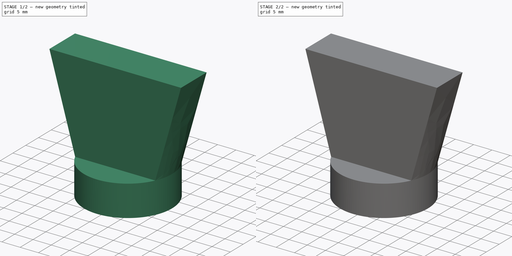
[diagram: build sequence overview — one tinted view per stage of 2, left to right]
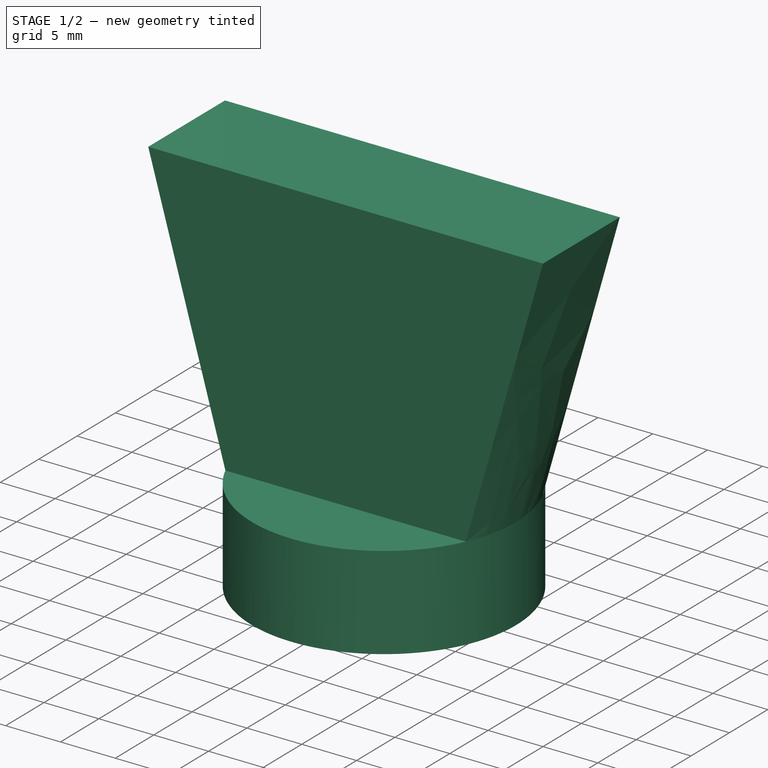
[diagram: stage 1 of 2 — iso view after this stage's code; geometry added in this stage tinted green]
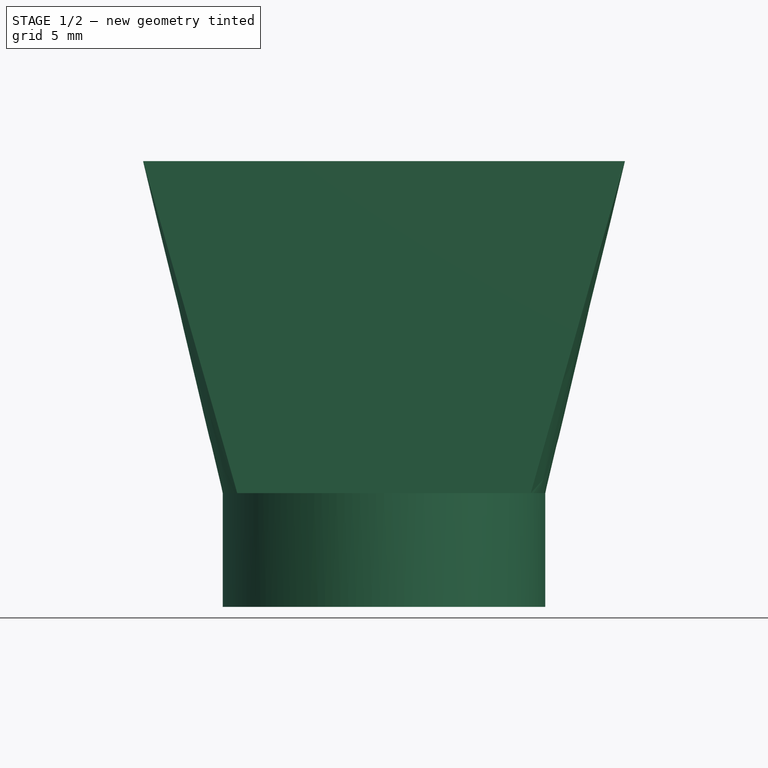
[diagram: stage 1 of 2 — front view after this stage's code; geometry added in this stage tinted green]
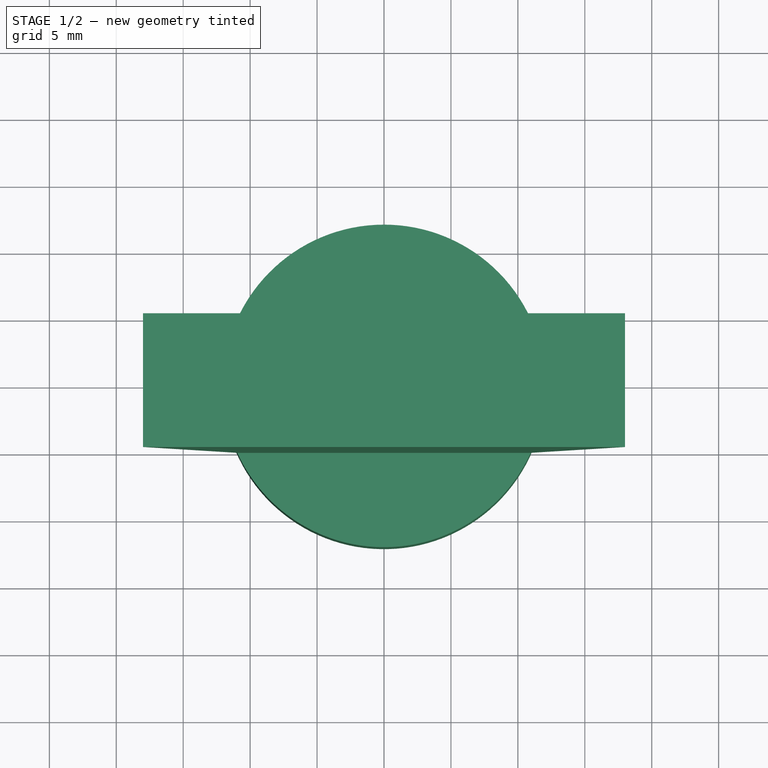
[diagram: stage 1 of 2 — top view after this stage's code; geometry added in this stage tinted green]
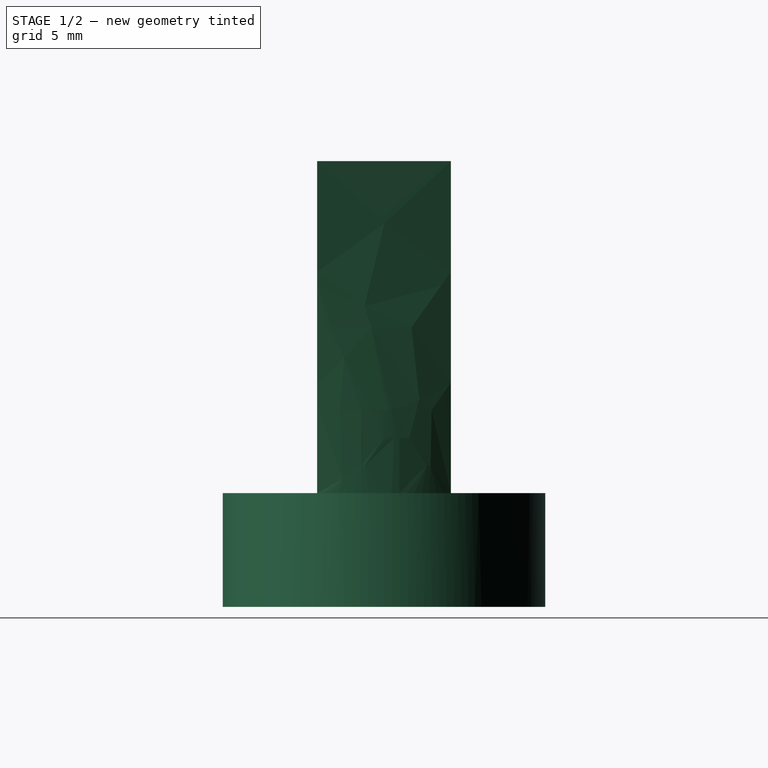
[diagram: stage 1 of 2 — right view after this stage's code; geometry added in this stage tinted green]
FCSTD DOCUMENT  (FreeCAD 1.1R39153 (Git))
Label: Пимпа для батарей
License: All rights reserved
LicenseURL: https://en.wikipedia.org/wiki/All_rights_reserved
objects: Sketcher::SketchObject×5, PartDesign::Pad×1, PartDesign::AdditiveLoft×1, PartDesign::Pocket×1, PartDesign::Body×1
note: 20 computed .brp shape members not serialized (recipe doc carries the construction recipe); baked Part::Feature solids carry a one-line shape summary decoded from their .brp

FEATURE [Sketcher::SketchObject] Sketch
  ArcFitTolerance = 1e-06
  AttachmentSupport = -> [XY_Plane]
  FullyConstrained = true
  MakeInternals = false
  MapMode = 5
  expr: Constraints[1] = 13.1 mm + 5.5 mm * 2
  sketch-geometry (1):
    g0: Circle CenterX=0 CenterY=0 CenterZ=0 NormalX=0 NormalY=0 NormalZ=1 AngleXU=0 Radius=12.05
  constraints (2):
    c: Coincident(g0,g-1)
    c: Diameter(g0) = 24.1
FEATURE [PartDesign::Pad] Pad
  Direction = (0,0,1)
  Length = 8.5
  Length2 = 10
  Profile = -> Sketch
  ReferenceAxis = -> Sketch [N_Axis]
  Refine = true
  Suppressed = false
  Type = 0
  expr: Length = 5.5 mm + 3 mm
FEATURE [Sketcher::SketchObject] Sketch001
  ArcFitTolerance = 1e-06
  AttachmentSupport = -> [XZ_Plane]
  ExternalGeometry = -> [Pad]
  FullyConstrained = false
  MakeInternals = false
  MapMode = 5
  Placement = pos=(0,0,0) rot=(1,0,0;1.5708rad)
  sketch-geometry (5):
    g0: LineSegment StartX=-12.05 StartY=8.5 StartZ=0 EndX=-15 EndY=28.5 EndZ=0
    g1: LineSegment StartX=-15 StartY=28.5 StartZ=0 EndX=15 EndY=28.5 EndZ=0
    g2: LineSegment StartX=15 StartY=28.5 StartZ=0 EndX=12.05 EndY=8.5 EndZ=0
    g3: LineSegment StartX=12.05 StartY=8.5 StartZ=0 EndX=-12.05 EndY=8.5 EndZ=0
    g4: LineSegment [constr] StartX=-15 StartY=28.5 StartZ=0 EndX=-15 EndY=8.57784 EndZ=0
  constraints (12):
    c: Coincident(g-3,g0)
    c: Coincident(g0,g1)
    c: Coincident(g1,g2)
    c: Coincident(g2,g-3)
    c: Coincident(g2,g3)
    c: Coincident(g3,g0)
    c: Symmetric(g0,g1,g-2)
    c: DistanceY(g2,g2) = 20
    c: DistanceX(g1,g1) = 30
    c: Coincident(g4,g0)
    c: Vertical(g4)
    c: Angle(g4,g0) = 0.146444
FEATURE [Sketcher::SketchObject] Sketch002
  ArcFitTolerance = 1e-06
  AttachmentSupport = -> [Pad]
  ExternalGeometry = -> [Pad]
  FullyConstrained = true
  MakeInternals = false
  MapMode = 5
  Placement = pos=(0,0,8.5) rot=(0,0,1;0rad)
  sketch-geometry (4):
    g0: ArcOfCircle CenterX=0 CenterY=0 CenterZ=0 NormalX=0 NormalY=0 NormalZ=1 AngleXU=0 Radius=12.05 StartAngle=2.71372 EndAngle=3.56947
    g1: ArcOfCircle CenterX=0 CenterY=0 CenterZ=0 NormalX=0 NormalY=0 NormalZ=1 AngleXU=0 Radius=12.05 StartAngle=5.85531 EndAngle=6.71106
    g2: LineSegment StartX=-10.9637 StartY=5 StartZ=0 EndX=10.9637 EndY=5 EndZ=0
    g3: LineSegment StartX=10.9637 StartY=-5 StartZ=0 EndX=-10.9637 EndY=-5 EndZ=0
  constraints (11):
    c: Coincident(g0,g-1)
    c: PointOnObject(g0,g-3)
    c: Coincident(g1,g0)
    c: Coincident(g2,g0)
    c: Coincident(g2,g1)
    c: Coincident(g3,g1)
    c: Coincident(g3,g0)
    c: Horizontal(g3)
    c: Symmetric(g0,g1,g0)
    c: Horizontal(g2)
    c: Distance(g3,g2) = 10
FEATURE [Sketcher::SketchObject] Sketch003
  ArcFitTolerance = 1e-06
  AttachmentOffset = pos=(0,0,33.3) rot=(0,0,1;0rad)
  AttachmentSupport = -> [XY_Plane]
  FullyConstrained = true
  MakeInternals = false
  MapMode = 5
  Placement = pos=(0,0,33.3) rot=(0,0,1;0rad)
  sketch-geometry (5):
    g0: LineSegment StartX=-18 StartY=-5 StartZ=0 EndX=18 EndY=-5 EndZ=0
    g1: LineSegment StartX=18 StartY=-5 StartZ=0 EndX=18 EndY=5 EndZ=0
    g2: LineSegment StartX=18 StartY=5 StartZ=0 EndX=-18 EndY=5 EndZ=0
    g3: LineSegment StartX=-18 StartY=5 StartZ=0 EndX=-18 EndY=-5 EndZ=0
    g4: GeomPoint [constr] X=0 Y=0 Z=0
  constraints (12):
    c: Coincident(g0,g1)
    c: Coincident(g1,g2)
    c: Coincident(g2,g3)
    c: Coincident(g3,g0)
    c: Horizontal(g0)
    c: Horizontal(g2)
    c: Vertical(g1)
    c: Vertical(g3)
    c: Symmetric(g2,g0,g4)
    c: Distance(g1,g3) = 36
    c: Distance(g0,g2) = 10
    c: Coincident(g4,g-1)
FEATURE [PartDesign::AdditiveLoft] AdditiveLoft
  BaseFeature = -> Pad
  Closed = false
  Profile = -> Sketch002
  Refine = true
  Ruled = false
  Sections = -> [Sketch003]
  Suppressed = false
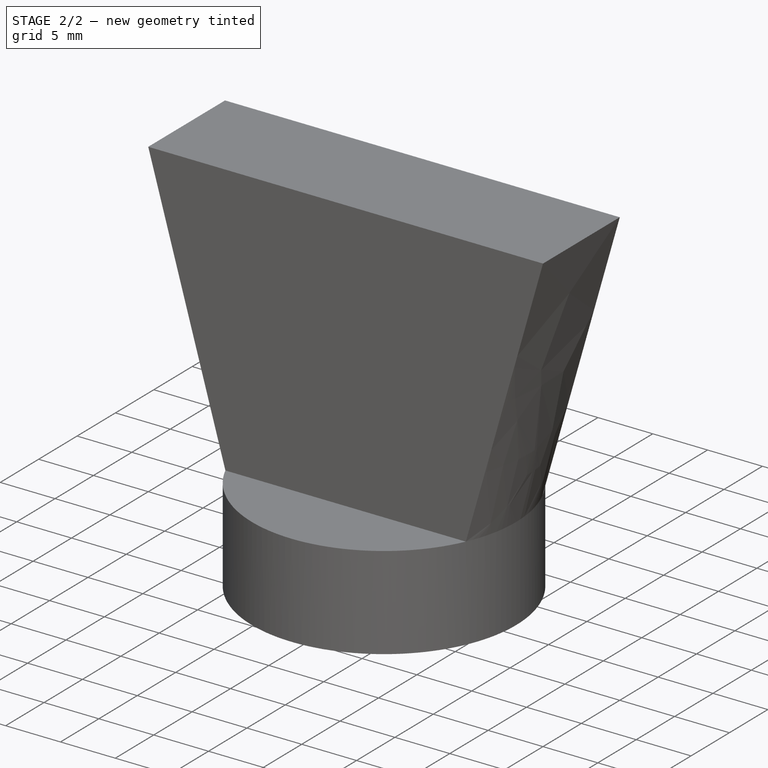
[diagram: stage 2 of 2 — iso view after this stage's code; geometry added in this stage tinted green]
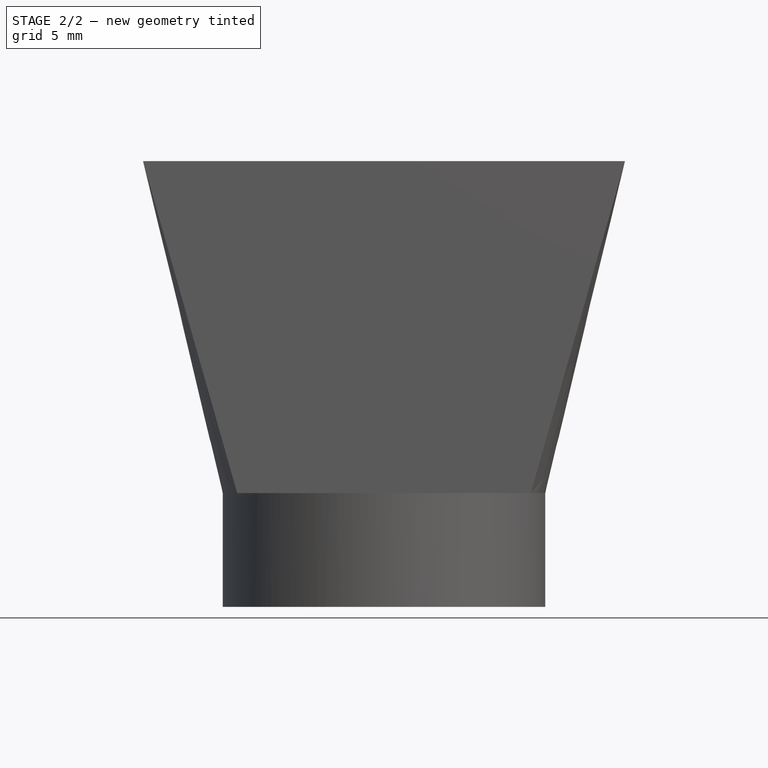
[diagram: stage 2 of 2 — front view after this stage's code; geometry added in this stage tinted green]
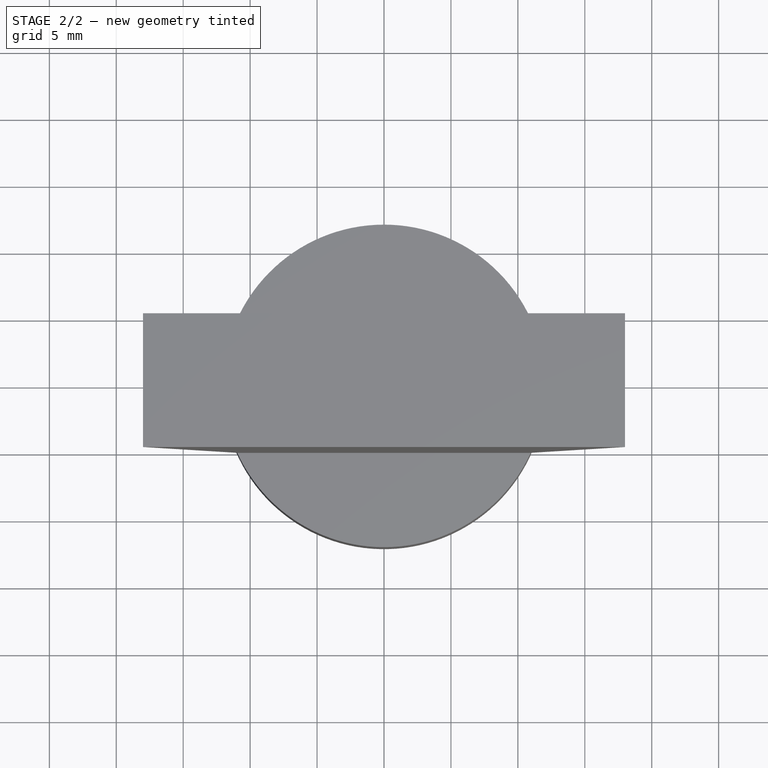
[diagram: stage 2 of 2 — top view after this stage's code; geometry added in this stage tinted green]
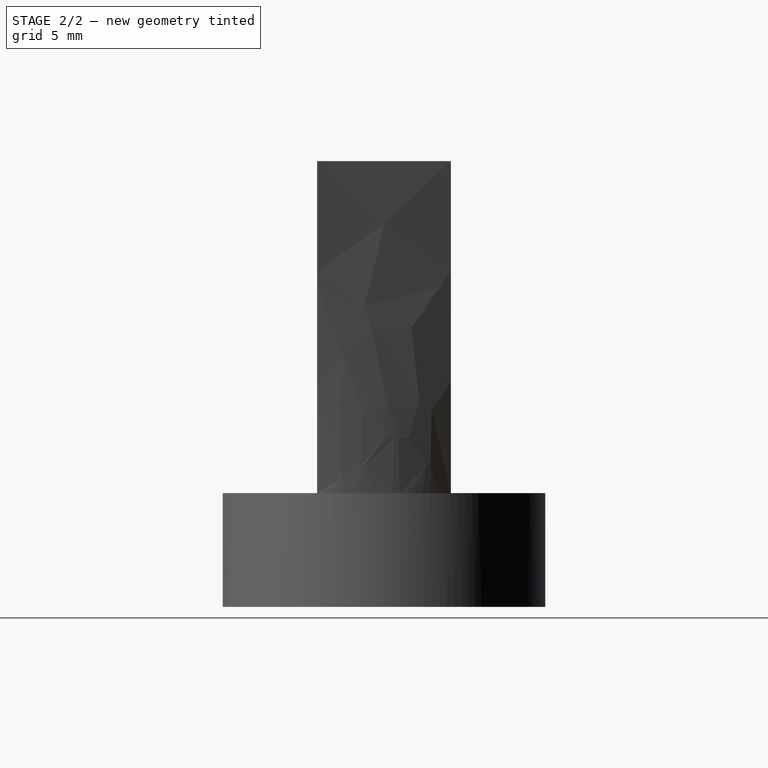
[diagram: stage 2 of 2 — right view after this stage's code; geometry added in this stage tinted green]
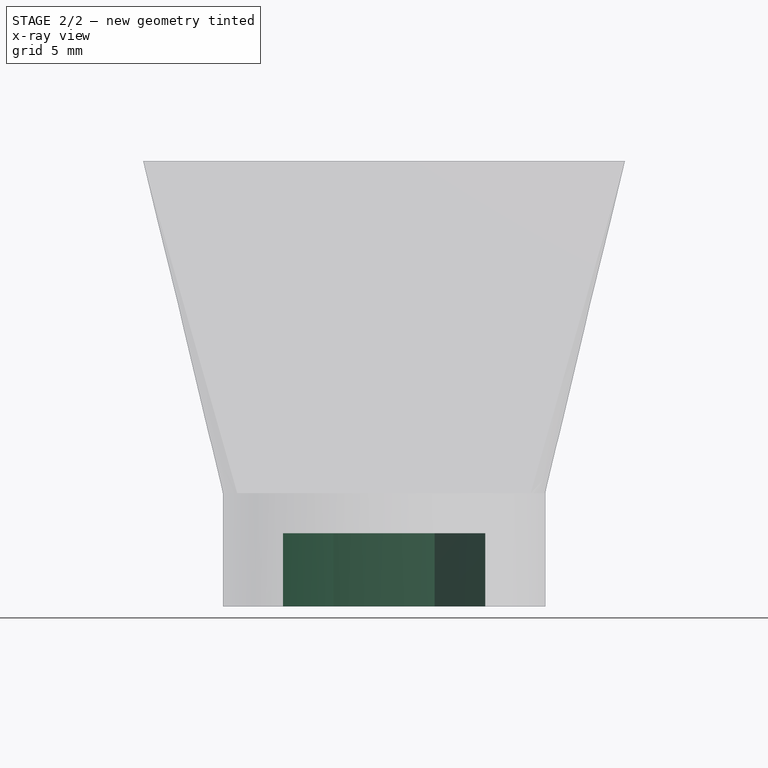
[diagram: stage 2 of 2 — x-ray composite at the front view; earlier geometry ghosted, this stage's added geometry solid]
FEATURE [Sketcher::SketchObject] Sketch004
  ArcFitTolerance = 1e-06
  AttachmentSupport = -> [AdditiveLoft]
  FullyConstrained = true
  MakeInternals = false
  MapMode = 5
  Placement = pos=(0,0,0) rot=(1,0,0;3.14159rad)
  sketch-geometry (7):
    g0: LineSegment StartX=-3.78164 StartY=6.55 StartZ=0 EndX=-7.56329 EndY=1.16e-12 EndZ=0
    g1: LineSegment StartX=-7.56329 StartY=1.1596e-12 StartZ=0 EndX=-3.78164 EndY=-6.55 EndZ=0
    g2: LineSegment StartX=-3.78164 StartY=-6.55 StartZ=0 EndX=3.78164 EndY=-6.55 EndZ=0
    g3: LineSegment StartX=3.78164 StartY=-6.55 StartZ=0 EndX=7.56329 EndY=-6.5272e-12 EndZ=0
    g4: LineSegment StartX=7.56329 StartY=-6.527e-12 StartZ=0 EndX=3.78164 EndY=6.55 EndZ=0
    g5: LineSegment StartX=3.78164 StartY=6.55 StartZ=0 EndX=-3.78164 EndY=6.55 EndZ=0
    g6: Circle [constr] CenterX=0 CenterY=0 CenterZ=0 NormalX=0 NormalY=0 NormalZ=1 AngleXU=0 Radius=7.56329
  constraints (16):
    c: Coincident(g0,g1)
    c: Coincident(g1,g2)
    c: Coincident(g2,g3)
    c: Coincident(g3,g4)
    c: Coincident(g4,g5)
    c: Coincident(g5,g0)
    c: Equal(g0, g1-g5) x5
    c: PointOnObject(g0,g6)
    c: PointOnObject(g1,g6)
    c: PointOnObject(g2,g6)
    c: PointOnObject(g3,g6)
    c: PointOnObject(g4,g6)
    c: PointOnObject(g5,g6)
    c: Coincident(g6,g-1)
    c: Distance(g0,g1) = 13.1
    c: Horizontal(g5)
FEATURE [PartDesign::Pocket] Pocket
  BaseFeature = -> AdditiveLoft
  Direction = (0,0,1)
  Length = 5.5
  Length2 = 5
  Profile = -> Sketch004
  ReferenceAxis = -> Sketch004 [N_Axis]
  Refine = true
  Suppressed = false
  Type = 0
FEATURE [PartDesign::Body] Body  label="Тело"
  AllowCompound = false
  Group = -> [Sketch,Pad,Sketch001,Sketch002,Sketch003,AdditiveLoft,Sketch004,Pocket]
  Origin = -> Origin
  Tip = -> Pocket
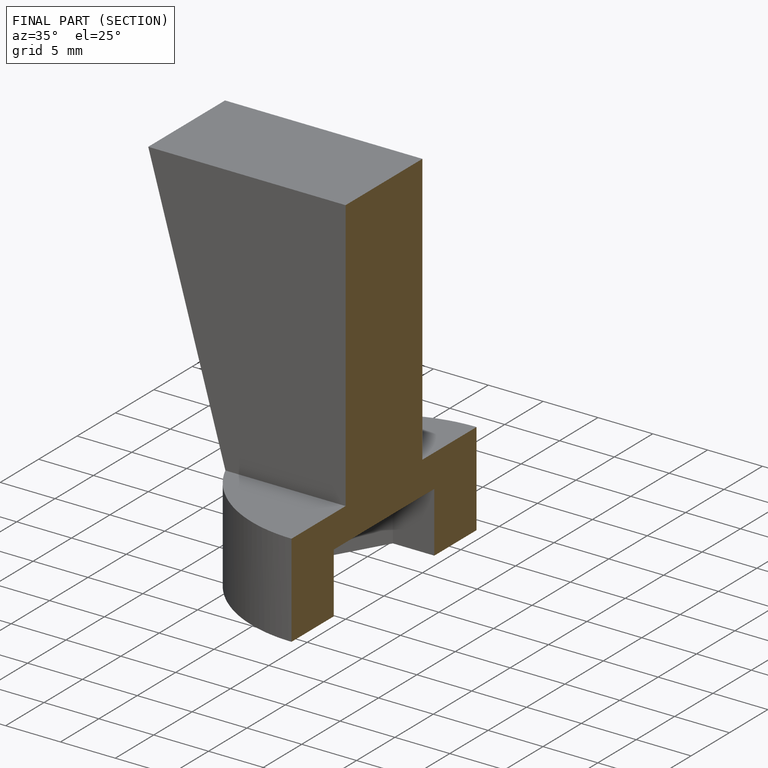
[diagram: finished part — half-section view (interior)]
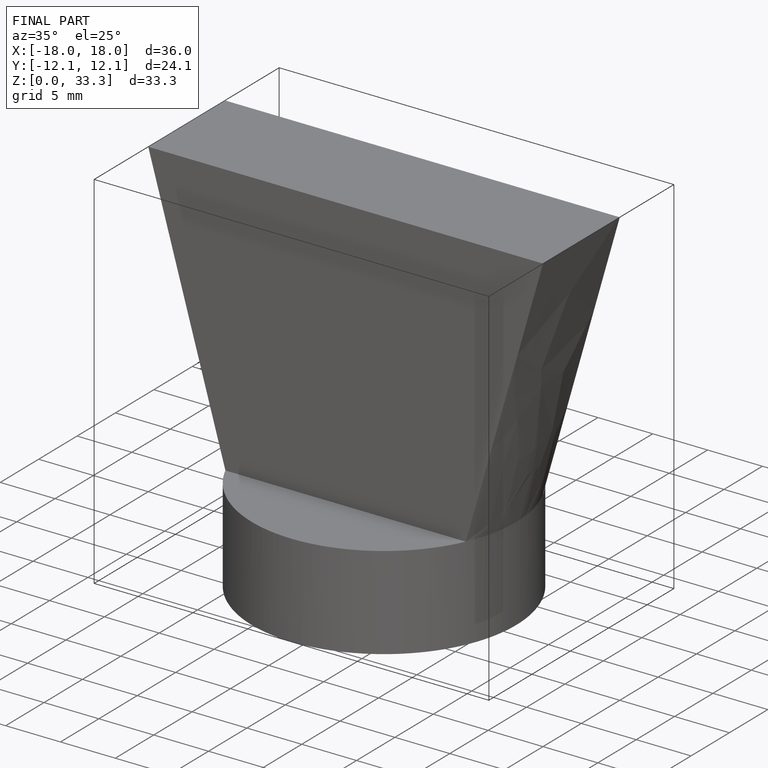
[diagram: finished part — iso view with bounding-box wireframe]
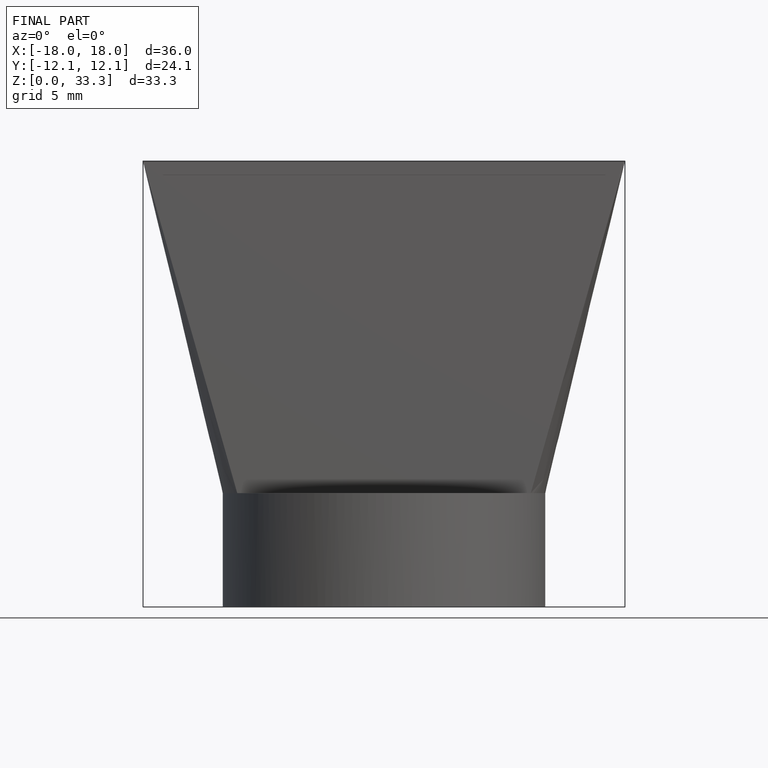
[diagram: finished part — front view with bounding-box wireframe]
